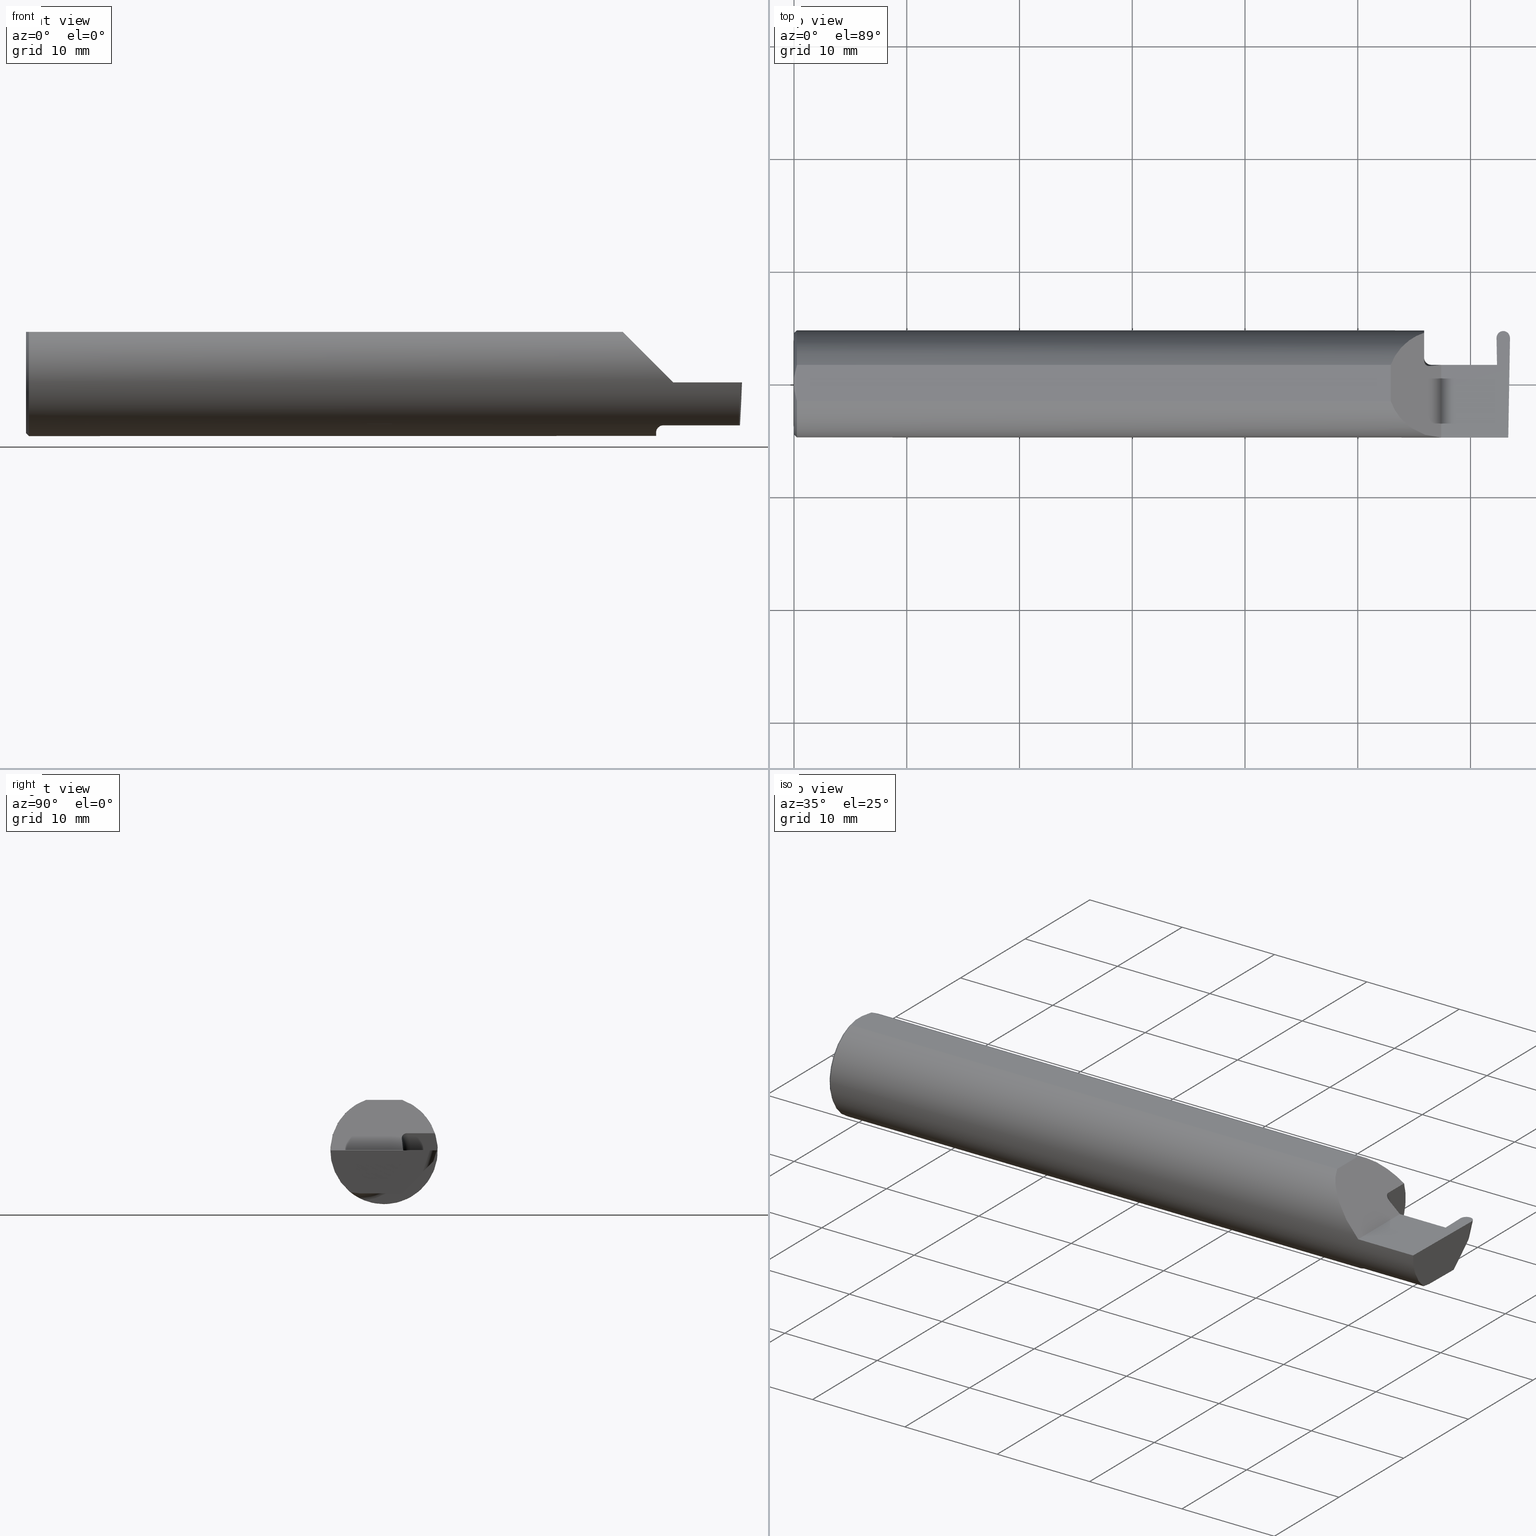
[diagram: canonical four-view strip — front | top / right | iso, engineering-drawing reading convention]
A machine part, canonical four-view strip (front | top / right | iso — engineering-drawing reading convention). The complete STEP part file that produces these views, byte-faithful:
ISO-10303-21;
HEADER;
FILE_DESCRIPTION (( 'STEP AP203' ),
    '1' );
FILE_NAME ('222116-GFR046-4.STEP',
    '2024-06-21T22:56:13',
    ( '' ),
    ( '' ),
    'SwSTEP 2.0',
    'SolidWorks 2022',
    '' );
FILE_SCHEMA (( 'CONFIG_CONTROL_DESIGN' ));
ENDSEC;

DATA;
#1 = CARTESIAN_POINT ( 'NONE',  ( 2.476759731742398163, 0.1846500000000000363, 0.000000000000000000 ) ) ;
#2 = ORIENTED_EDGE ( 'NONE', *, *, #686, .T. ) ;
#3 = ADVANCED_FACE ( 'NONE', ( #466 ), #675, .T. ) ;
#4 = PRODUCT_DEFINITION_SHAPE ( 'NONE', 'NONE',  #640 ) ;
#5 = CARTESIAN_POINT ( 'NONE',  ( 2.476480000000000903, 0.1790328857325889367, -0.01728770010724361636 ) ) ;
#6 = DIRECTION ( 'NONE',  ( -1.000000000000000000, -0.000000000000000000, -0.000000000000000000 ) ) ;
#7 = ORIENTED_EDGE ( 'NONE', *, *, #583, .T. ) ;
#8 = DIRECTION ( 'NONE',  ( 0.000000000000000000, 0.000000000000000000, -1.000000000000000000 ) ) ;
#9 = CARTESIAN_POINT ( 'NONE',  ( 2.476480000000000015, 0.1824111880958917686, -0.006890354540105977747 ) ) ;
#10 = ORIENTED_EDGE ( 'NONE', *, *, #359, .F. ) ;
#11 = DIMENSIONAL_EXPONENTS ( 1.000000000000000000, 0.000000000000000000, 0.000000000000000000, 0.000000000000000000, 0.000000000000000000, 0.000000000000000000, 0.000000000000000000 ) ;
#12 = DIRECTION ( 'NONE',  ( 0.000000000000000000, -0.7071067811865516806, 0.7071067811865434649 ) ) ;
#13 = ORIENTED_EDGE ( 'NONE', *, *, #50, .T. ) ;
#14 = VECTOR ( 'NONE', #211, 39.37007874015748143 ) ;
#15 = LOCAL_TIME ( 15, 56, 13.00000000000000000, #687 ) ;
#16 = CONICAL_SURFACE ( 'NONE', #299, 0.1773500000000005072, 0.7853981633974551624 ) ;
#17 = EDGE_CURVE ( 'NONE', #516, #431, #252, .T. ) ;
#18 = CARTESIAN_POINT ( 'NONE',  ( 2.463296071009176913, 0.1711396766916343237, -0.03916337485151524106 ) ) ;
#19 = ORIENTED_EDGE ( 'NONE', *, *, #560, .F. ) ;
#20 = ADVANCED_FACE ( 'NONE', ( #192 ), #520, .T. ) ;
#21 = DIRECTION ( 'NONE',  ( -0.01745240643727575397, -0.9998476951563912696, 0.000000000000000000 ) ) ;
#22 = ORIENTED_EDGE ( 'NONE', *, *, #471, .F. ) ;
#23 = LINE ( 'NONE', #63, #103 ) ;
#24 = EDGE_LOOP ( 'NONE', ( #654, #165, #664, #660 ) ) ;
#25 = VECTOR ( 'NONE', #32, 39.37007874015748143 ) ;
#26 = VECTOR ( 'NONE', #391, 39.37007874015748143 ) ;
#27 = VERTEX_POINT ( 'NONE', #37 ) ;
#28 = DATE_AND_TIME ( #201, #15 ) ;
#29 = ORIENTED_EDGE ( 'NONE', *, *, #310, .T. ) ;
#30 = CARTESIAN_POINT ( 'NONE',  ( 2.083649999999998670, 0.06325108694718283020, 0.1763499999999999235 ) ) ;
#31 = EDGE_CURVE ( 'NONE', #56, #67, #92, .T. ) ;
#32 = DIRECTION ( 'NONE',  ( 1.000000000000000000, 0.000000000000000000, 0.000000000000000000 ) ) ;
#33 = ORIENTED_EDGE ( 'NONE', *, *, #17, .T. ) ;
#34 = DIRECTION ( 'NONE',  ( 0.000000000000000000, -1.000000000000000000, 0.000000000000000000 ) ) ;
#35 = PERSON_AND_ORGANIZATION ( #317, #319 ) ;
#36 = EDGE_CURVE ( 'NONE', #427, #292, #683, .T. ) ;
#37 = CARTESIAN_POINT ( 'NONE',  ( 0.000000000000000000, -0.01880691362239451242, 0.1763499999999999235 ) ) ;
#38 = ADVANCED_FACE ( 'NONE', ( #626 ), #16, .T. ) ;
#39 = PLANE ( 'NONE',  #51 ) ;
#40 =( NAMED_UNIT ( * ) SI_UNIT ( $, .STERADIAN. ) SOLID_ANGLE_UNIT ( ) );
#41 = DIRECTION ( 'NONE',  ( 0.000000000000000000, 0.000000000000000000, -1.000000000000000000 ) ) ;
#42 = CARTESIAN_POINT ( 'NONE',  ( 2.452963582209922055, 0.1607195194005952010, 0.000000000000000000 ) ) ;
#43 = FACE_OUTER_BOUND ( 'NONE', #54, .T. ) ;
#44 = FACE_OUTER_BOUND ( 'NONE', #199, .T. ) ;
#45 = PERSON_AND_ORGANIZATION_ROLE ( 'classification_officer' ) ;
#46 = DIRECTION ( 'NONE',  ( -0.001239419280281356568, 0.9999992319196288060, -7.696171051551530993E-21 ) ) ;
#47 = LOCAL_TIME ( 15, 56, 13.00000000000000000, #377 ) ;
#48 = CARTESIAN_POINT ( 'NONE',  ( 2.225000000000000089, -0.1172600179964003314, -0.1461167706989305870 ) ) ;
#49 = ORIENTED_EDGE ( 'NONE', *, *, #290, .F. ) ;
#50 = EDGE_CURVE ( 'NONE', #390, #194, #566, .T. ) ;
#51 = AXIS2_PLACEMENT_3D ( 'NONE', #411, #358, #521 ) ;
#52 = CARTESIAN_POINT ( 'NONE',  ( 2.447180481656269446, 0.06628460753897337521, -0.01046347106162403597 ) ) ;
#53 = CARTESIAN_POINT ( 'NONE',  ( 2.213203859946834662, -0.1120371980050636346, -0.1501764597936560974 ) ) ;
#54 = EDGE_LOOP ( 'NONE', ( #342, #554, #399, #277, #352 ) ) ;
#55 = CARTESIAN_POINT ( 'NONE',  ( 2.222331837506049901, 0.06186927743178083361, 0.03766816249395005256 ) ) ;
#56 = VERTEX_POINT ( 'NONE', #678 ) ;
#57 = FACE_OUTER_BOUND ( 'NONE', #613, .T. ) ;
#58 = VECTOR ( 'NONE', #112, 39.37007874015748854 ) ;
#59 = CARTESIAN_POINT ( 'NONE',  ( 2.260000000000000231, -0.1873499999999999888, 2.939152317953647352E-17 ) ) ;
#60 = EDGE_LOOP ( 'NONE', ( #402, #238, #159, #303 ) ) ;
#61 = CIRCLE ( 'NONE', #122, 0.1750000000000001277 ) ;
#62 = DIRECTION ( 'NONE',  ( -0.03858184836401778312, -0.3087869137032491218, -0.9503484007996426675 ) ) ;
#63 = CARTESIAN_POINT ( 'NONE',  ( 2.454167696218687134, 0.2173767386537069080, 0.007073687110557875732 ) ) ;
#64 = ORIENTED_EDGE ( 'NONE', *, *, #370, .T. ) ;
#65 = UNCERTAINTY_MEASURE_WITH_UNIT (LENGTH_MEASURE( 1.000000000000000082E-05 ), #253, 'distance_accuracy_value', 'NONE');
#66 = CARTESIAN_POINT ( 'NONE',  ( -3.937007874019685528E-05, 0.1723030515431495657, -0.03799999999999999906 ) ) ;
#67 = VERTEX_POINT ( 'NONE', #409 ) ;
#68 = LINE ( 'NONE', #515, #334 ) ;
#69 = ORIENTED_EDGE ( 'NONE', *, *, #571, .F. ) ;
#70 = EDGE_CURVE ( 'NONE', #524, #292, #143, .T. ) ;
#71 = AXIS2_PLACEMENT_3D ( 'NONE', #505, #227, #605 ) ;
#72 =( GEOMETRIC_REPRESENTATION_CONTEXT ( 3 ) GLOBAL_UNCERTAINTY_ASSIGNED_CONTEXT ( ( #65 ) ) GLOBAL_UNIT_ASSIGNED_CONTEXT ( ( #253, #468, #40 ) ) REPRESENTATION_CONTEXT ( 'NONE', 'WORKASPACE' ) );
#73 = AXIS2_PLACEMENT_3D ( 'NONE', #157, #599, #104 ) ;
#74 = LINE ( 'NONE', #607, #161 ) ;
#75 = ORIENTED_EDGE ( 'NONE', *, *, #557, .T. ) ;
#76 = CARTESIAN_POINT ( 'NONE',  ( 2.472514239400390501, 0.2141508539741453221, 0.09079429260883779829 ) ) ;
#77 = VERTEX_POINT ( 'NONE', #361 ) ;
#78 = APPLICATION_PROTOCOL_DEFINITION ( 'international standard', 'config_control_design', 1994, #269 ) ;
#79 = EDGE_LOOP ( 'NONE', ( #107, #657, #561, #680 ) ) ;
#80 =( BOUNDED_CURVE ( )  B_SPLINE_CURVE ( 3, ( #403, #181, #503, #665 ),
 .UNSPECIFIED., .F., .F. ) 
 B_SPLINE_CURVE_WITH_KNOTS ( ( 4, 4 ),
 ( 0.2354267821558881923, 0.4634648172053364990 ),
 .UNSPECIFIED. ) 
 CURVE ( )  GEOMETRIC_REPRESENTATION_ITEM ( )  RATIONAL_B_SPLINE_CURVE ( ( 1.000000000000000000, 0.9956712472009928705, 0.9956712472009928705, 1.000000000000000000 ) ) 
 REPRESENTATION_ITEM ( '' )  );
#81 = CC_DESIGN_SECURITY_CLASSIFICATION ( #196, ( #263 ) ) ;
#82 = AXIS2_PLACEMENT_3D ( 'NONE', #647, #383, #498 ) ;
#83 = APPROVAL_DATE_TIME ( #189, #140 ) ;
#84 = DIRECTION ( 'NONE',  ( -0.03701368837992396327, -0.7066222423871548752, -0.7066222423871630909 ) ) ;
#85 = CARTESIAN_POINT ( 'NONE',  ( 2.447545874117295739, 0.06664999999999991764, 0.000000000000000000 ) ) ;
#86 =( BOUNDED_CURVE ( )  B_SPLINE_CURVE ( 3, ( #145, #138, #679, #148 ),
 .UNSPECIFIED., .F., .F. ) 
 B_SPLINE_CURVE_WITH_KNOTS ( ( 4, 4 ),
 ( 0.2128041086811283400, 1.107331509589577045 ),
 .UNSPECIFIED. ) 
 CURVE ( )  GEOMETRIC_REPRESENTATION_ITEM ( )  RATIONAL_B_SPLINE_CURVE ( ( 1.000000000000000000, 0.9344226172588800949, 0.9344226172588800949, 1.000000000000000000 ) ) 
 REPRESENTATION_ITEM ( '' )  );
#87 = COORDINATED_UNIVERSAL_TIME_OFFSET ( 8, 0, .BEHIND. ) ;
#88 = ORIENTED_EDGE ( 'NONE', *, *, #454, .F. ) ;
#89 = CARTESIAN_POINT ( 'NONE',  ( 2.103305020982357387, 0.1180511404724818164, 0.1566949790176410395 ) ) ;
#90 = ADVANCED_FACE ( 'NONE', ( #139 ), #321, .F. ) ;
#91 = EDGE_CURVE ( 'NONE', #427, #296, #629, .T. ) ;
#92 = LINE ( 'NONE', #309, #535 ) ;
#93 = MANIFOLD_SOLID_BREP ( 'Radii', #651 ) ;
#94 = CARTESIAN_POINT ( 'NONE',  ( 2.454605571778825102, 0.06664999999999998703, 0.000000000000000000 ) ) ;
#95 = DATE_TIME_ROLE ( 'creation_date' ) ;
#96 = ORIENTED_EDGE ( 'NONE', *, *, #525, .F. ) ;
#97 = LINE ( 'NONE', #42, #623 ) ;
#98 = ORIENTED_EDGE ( 'NONE', *, *, #186, .T. ) ;
#99 = CARTESIAN_POINT ( 'NONE',  ( 0.000000000000000000, 0.01880691362239451242, 0.1763499999999999235 ) ) ;
#100 = DIRECTION ( 'NONE',  ( -0.03858184836401847700, 0.3087869137032490663, 0.9503484007996426675 ) ) ;
#101 = CARTESIAN_POINT ( 'NONE',  ( 2.206491315391052144, 0.06519110945230538467, 0.05350868460894756679 ) ) ;
#102 = ORIENTED_EDGE ( 'NONE', *, *, #370, .F. ) ;
#103 = VECTOR ( 'NONE', #293, 39.37007874015748143 ) ;
#104 = DIRECTION ( 'NONE',  ( 0.000000000000000000, -1.000000000000000000, 0.000000000000000000 ) ) ;
#105 = LOCAL_TIME ( 15, 56, 13.00000000000000000, #353 ) ;
#106 = DIRECTION ( 'NONE',  ( -0.03549161113179515048, 0.03487750912278131388, 0.9987611851171729338 ) ) ;
#107 = ORIENTED_EDGE ( 'NONE', *, *, #611, .F. ) ;
#108 = VECTOR ( 'NONE', #578, 39.37007874015748143 ) ;
#109 = EDGE_CURVE ( 'NONE', #420, #281, #577, .T. ) ;
#110 = APPROVAL_ROLE ( '' ) ;
#111 = DIRECTION ( 'NONE',  ( 1.000000000000000000, 0.000000000000000000, 0.000000000000000000 ) ) ;
#112 = DIRECTION ( 'NONE',  ( -0.01745240643727575744, -0.9998476951563912696, 1.211557572730191881E-19 ) ) ;
#113 = ORIENTED_EDGE ( 'NONE', *, *, #232, .T. ) ;
#114 = PERSON_AND_ORGANIZATION_ROLE ( 'design_supplier' ) ;
#115 = CARTESIAN_POINT ( 'NONE',  ( 2.260000000000000231, 0.06664999999999984825, 2.939152317953647352E-17 ) ) ;
#116 = CARTESIAN_POINT ( 'NONE',  ( 2.083649999999998670, -0.2500000000000000555, 0.1763499999999999235 ) ) ;
#117 = ORIENTED_EDGE ( 'NONE', *, *, #36, .F. ) ;
#118 = PLANE ( 'NONE',  #82 ) ;
#119 = VECTOR ( 'NONE', #134, 39.37007874015748143 ) ;
#120 = DIRECTION ( 'NONE',  ( 1.000000000000000000, 4.724792446347703932E-16, 0.000000000000000000 ) ) ;
#121 = ORIENTED_EDGE ( 'NONE', *, *, #215, .F. ) ;
#122 = AXIS2_PLACEMENT_3D ( 'NONE', #658, #175, #604 ) ;
#123 = PLANE ( 'NONE',  #631 ) ;
#124 = ORIENTED_EDGE ( 'NONE', *, *, #144, .F. ) ;
#125 = B_SPLINE_CURVE_WITH_KNOTS ( 'NONE', 3,
 ( #48, #385, #266, #642, #53, #158, #653, #170, #389, #597, #331, #546 ),
 .UNSPECIFIED., .F., .F.,
 ( 4, 2, 2, 2, 2, 4 ),
 ( 1.967976973658592312E-07, 0.0002120314145722268929, 0.0004238660314470878913, 0.0008475352651967972030, 0.001271204498946506677, 0.001694873732696216152 ),
 .UNSPECIFIED. ) ;
#126 = ADVANCED_FACE ( 'NONE', ( #210 ), #589, .T. ) ;
#127 = DIRECTION ( 'NONE',  ( -0.03858184836401847007, 0.3087869137032490663, 0.9503484007996424454 ) ) ;
#128 = VERTEX_POINT ( 'NONE', #207 ) ;
#129 = CARTESIAN_POINT ( 'NONE',  ( 2.454605571778825102, 0.06664999999999998703, 0.000000000000000000 ) ) ;
#130 = EDGE_LOOP ( 'NONE', ( #188, #113, #174, #463 ) ) ;
#131 = VECTOR ( 'NONE', #439, 39.37007874015748143 ) ;
#132 = DIRECTION ( 'NONE',  ( 0.000000000000000000, 0.000000000000000000, -1.000000000000000000 ) ) ;
#133 = ORIENTED_EDGE ( 'NONE', *, *, #593, .T. ) ;
#134 = DIRECTION ( 'NONE',  ( 0.03858184836401778312, 0.3087869137032490663, 0.9503484007996426675 ) ) ;
#135 = VERTEX_POINT ( 'NONE', #52 ) ;
#136 = DIRECTION ( 'NONE',  ( 1.000000000000000000, 0.000000000000000000, 0.000000000000000000 ) ) ;
#137 = CARTESIAN_POINT ( 'NONE',  ( 2.473072870090768038, 0.1327926526855970346, -0.08355290663987213762 ) ) ;
#138 = CARTESIAN_POINT ( 'NONE',  ( 2.490517704308097713, -0.1623470442677540093, -0.1099340280425339517 ) ) ;
#139 = FACE_OUTER_BOUND ( 'NONE', #60, .T. ) ;
#140 = APPROVAL ( #308, 'UNSPECIFIED' ) ;
#141 = DIRECTION ( 'NONE',  ( 0.03490480639812536257, 0.000000000000000000, 0.9993906415863165194 ) ) ;
#142 = DIRECTION ( 'NONE',  ( -0.7071067811865441310, 0.000000000000000000, -0.7071067811865510144 ) ) ;
#143 = LINE ( 'NONE', #481, #511 ) ;
#144 = EDGE_CURVE ( 'NONE', #287, #27, #256, .T. ) ;
#145 = CARTESIAN_POINT ( 'NONE',  ( 2.490040979592266890, -0.1172600179964004424, -0.1461167706989304482 ) ) ;
#146 = CARTESIAN_POINT ( 'NONE',  ( 2.260000000000000231, -0.2500000000000000555, 2.939152317953647352E-17 ) ) ;
#147 = DIRECTION ( 'NONE',  ( 0.000000000000000000, 0.000000000000000000, -1.000000000000000000 ) ) ;
#148 = CARTESIAN_POINT ( 'NONE',  ( 2.493920841729410753, -0.1873499999999999888, 0.000000000000000000 ) ) ;
#149 = VECTOR ( 'NONE', #127, 39.37007874015748854 ) ;
#150 = CARTESIAN_POINT ( 'NONE',  ( 2.876828993045917215, 0.1873499999999998500, 0.1763499999999999235 ) ) ;
#151 = AXIS2_PLACEMENT_3D ( 'NONE', #470, #526, #147 ) ;
#152 = CARTESIAN_POINT ( 'NONE',  ( 2.476200268257601866, 0.1846500000000000363, 0.000000000000000000 ) ) ;
#153 = PERSON_AND_ORGANIZATION ( #317, #319 ) ;
#154 = CARTESIAN_POINT ( 'NONE',  ( 2.200000000000000178, 0.08104282222773610822, 0.05999999999999956757 ) ) ;
#155 = CARTESIAN_POINT ( 'NONE',  ( 0.000000000000000000, 0.01880691362239451242, 0.1763499999999999235 ) ) ;
#156 = ORIENTED_EDGE ( 'NONE', *, *, #91, .F. ) ;
#157 = CARTESIAN_POINT ( 'NONE',  ( 2.225000000000000089, -0.08335000000000010456, 0.000000000000000000 ) ) ;
#158 = CARTESIAN_POINT ( 'NONE',  ( 2.208439486659307338, -0.1064616213911155906, -0.1542305641651501580 ) ) ;
#159 = ORIENTED_EDGE ( 'NONE', *, *, #469, .T. ) ;
#160 = ADVANCED_FACE ( 'NONE', ( #43 ), #590, .T. ) ;
#161 = VECTOR ( 'NONE', #21, 39.37007874015748854 ) ;
#162 = APPROVAL_STATUS ( 'not_yet_approved' ) ;
#163 = CARTESIAN_POINT ( 'NONE',  ( 0.000000000000000000, -0.01880691362239451242, 0.1763499999999999235 ) ) ;
#164 = DIRECTION ( 'NONE',  ( 1.000000000000000000, 4.724792446347703932E-16, 0.000000000000000000 ) ) ;
#165 = ORIENTED_EDGE ( 'NONE', *, *, #611, .T. ) ;
#166 = AXIS2_PLACEMENT_3D ( 'NONE', #579, #279, #8 ) ;
#167 = EDGE_CURVE ( 'NONE', #301, #559, #698, .T. ) ;
#168 = APPROVAL_DATE_TIME ( #204, #372 ) ;
#169 = LINE ( 'NONE', #537, #384 ) ;
#170 = CARTESIAN_POINT ( 'NONE',  ( 2.202960551809340917, -0.09317341542745721794, -0.1626248379125198873 ) ) ;
#171 = ORIENTED_EDGE ( 'NONE', *, *, #314, .T. ) ;
#172 = CARTESIAN_POINT ( 'NONE',  ( 2.260000000000000231, -0.2500000000000000555, 2.939152317953647352E-17 ) ) ;
#173 = CARTESIAN_POINT ( 'NONE',  ( 2.219643712645606559, 0.06157137645965355538, 0.04035628735439349829 ) ) ;
#174 = ORIENTED_EDGE ( 'NONE', *, *, #387, .T. ) ;
#175 = DIRECTION ( 'NONE',  ( -1.000000000000000000, -4.724792446347703932E-16, -0.000000000000000000 ) ) ;
#176 = CARTESIAN_POINT ( 'NONE',  ( 0.009999999999999346217, 0.000000000000000000, 0.000000000000000000 ) ) ;
#177 = ORIENTED_EDGE ( 'NONE', *, *, #471, .T. ) ;
#178 = EDGE_CURVE ( 'NONE', #489, #390, #278, .T. ) ;
#179 = DIRECTION ( 'NONE',  ( 0.000000000000000000, -0.7071067811865434649, -0.7071067811865516806 ) ) ;
#180 = ORIENTED_EDGE ( 'NONE', *, *, #197, .T. ) ;
#181 = CARTESIAN_POINT ( 'NONE',  ( 2.490145048687840923, -0.1061291577212404302, -0.1486999626928448004 ) ) ;
#182 = ORIENTED_EDGE ( 'NONE', *, *, #507, .T. ) ;
#183 = ADVANCED_FACE ( 'NONE', ( #261 ), #118, .F. ) ;
#184 = PLANE ( 'NONE',  #681 ) ;
#185 = ORIENTED_EDGE ( 'NONE', *, *, #70, .T. ) ;
#186 = EDGE_CURVE ( 'NONE', #287, #274, #696, .T. ) ;
#187 = DIRECTION ( 'NONE',  ( 1.000000000000000000, 0.000000000000000000, 0.000000000000000000 ) ) ;
#188 = ORIENTED_EDGE ( 'NONE', *, *, #441, .F. ) ;
#189 = DATE_AND_TIME ( #691, #661 ) ;
#190 = ORIENTED_EDGE ( 'NONE', *, *, #593, .F. ) ;
#191 = CARTESIAN_POINT ( 'NONE',  ( 2.476759731742398163, 0.1846500000000000363, 0.000000000000000000 ) ) ;
#192 = FACE_OUTER_BOUND ( 'NONE', #396, .T. ) ;
#193 = DIRECTION ( 'NONE',  ( -0.9992386149554827179, 0.01744177490282240728, 0.03489949670250104552 ) ) ;
#194 = VERTEX_POINT ( 'NONE', #429 ) ;
#195 = VECTOR ( 'NONE', #225, 39.37007874015748143 ) ;
#196 = SECURITY_CLASSIFICATION ( '', '', #315 ) ;
#197 = EDGE_CURVE ( 'NONE', #77, #301, #641, .T. ) ;
#198 = VECTOR ( 'NONE', #541, 39.37007874015748143 ) ;
#199 = EDGE_LOOP ( 'NONE', ( #435, #156, #69, #592 ) ) ;
#200 = CARTESIAN_POINT ( 'NONE',  ( 2.236476718690367793, 0.06526343940705725544, 0.02352328130963212555 ) ) ;
#201 = CALENDAR_DATE ( 2024, 21, 6 ) ;
#202 = DIRECTION ( 'NONE',  ( 4.724792446347703932E-16, -1.000000000000000000, 0.000000000000000000 ) ) ;
#203 = FACE_OUTER_BOUND ( 'NONE', #616, .T. ) ;
#204 = DATE_AND_TIME ( #646, #47 ) ;
#205 = CARTESIAN_POINT ( 'NONE',  ( 2.454605571778825102, 0.06664999999999998703, 0.000000000000000000 ) ) ;
#206 = CARTESIAN_POINT ( 'NONE',  ( 2.493920841729410753, -0.1873499999999999888, 0.000000000000000000 ) ) ;
#207 = CARTESIAN_POINT ( 'NONE',  ( 2.225000000000000089, -0.1172600179964003314, -0.1461167706989305870 ) ) ;
#208 = DIRECTION ( 'NONE',  ( 0.03547001781079399396, 0.000000000000000000, -0.9993707409347654114 ) ) ;
#209 = VERTEX_POINT ( 'NONE', #388 ) ;
#210 = FACE_OUTER_BOUND ( 'NONE', #79, .T. ) ;
#211 = DIRECTION ( 'NONE',  ( 0.000000000000000000, 1.000000000000000000, 0.000000000000000000 ) ) ;
#212 = EDGE_LOOP ( 'NONE', ( #510, #75, #572 ) ) ;
#213 = PERSON_AND_ORGANIZATION ( #317, #319 ) ;
#214 = CARTESIAN_POINT ( 'NONE',  ( 2.472514239400390501, 0.1918010258412092273, 0.09805619197664909581 ) ) ;
#215 = EDGE_CURVE ( 'NONE', #585, #489, #635, .T. ) ;
#216 = CARTESIAN_POINT ( 'NONE',  ( 2.476480000000000459, 0.1722500154617881696, -0.03805303608136139520 ) ) ;
#217 = EDGE_LOOP ( 'NONE', ( #406, #700, #64, #29, #506, #223, #456, #440, #294 ) ) ;
#218 = CARTESIAN_POINT ( 'NONE',  ( 2.476480000000000903, 0.1756450098733835230, -0.02767777025991331394 ) ) ;
#219 = CARTESIAN_POINT ( 'NONE',  ( 2.225000000000000089, 0.06250952145814826777, 0.03500000000000007272 ) ) ;
#220 = ORIENTED_EDGE ( 'NONE', *, *, #697, .T. ) ;
#221 = DIRECTION ( 'NONE',  ( 0.000000000000000000, 0.000000000000000000, -1.000000000000000000 ) ) ;
#222 = CARTESIAN_POINT ( 'NONE',  ( 2.454605571778825102, 0.06664999999999998703, 0.000000000000000000 ) ) ;
#223 = ORIENTED_EDGE ( 'NONE', *, *, #232, .F. ) ;
#224 = CARTESIAN_POINT ( 'NONE',  ( 2.460115337567889249, -0.08334999999999999354, -0.1500000000000000500 ) ) ;
#225 = DIRECTION ( 'NONE',  ( 0.7071067811865426878, 0.000000000000000000, -0.7071067811865523467 ) ) ;
#226 = ORIENTED_EDGE ( 'NONE', *, *, #31, .T. ) ;
#227 = DIRECTION ( 'NONE',  ( -1.000000000000000000, -0.000000000000000000, -0.000000000000000000 ) ) ;
#228 = ORIENTED_EDGE ( 'NONE', *, *, #701, .F. ) ;
#229 =( BOUNDED_CURVE ( )  B_SPLINE_CURVE ( 3, ( #152, #250, #689, #311 ),
 .UNSPECIFIED., .F., .F. ) 
 B_SPLINE_CURVE_WITH_KNOTS ( ( 4, 4 ),
 ( 6.164995997523367244, 7.741595932998476925 ),
 .UNSPECIFIED. ) 
 CURVE ( )  GEOMETRIC_REPRESENTATION_ITEM ( )  RATIONAL_B_SPLINE_CURVE ( ( 1.000000000000000000, 0.8033679476376971440, 0.8033679476376971440, 1.000000000000000000 ) ) 
 REPRESENTATION_ITEM ( '' )  );
#230 = AXIS2_PLACEMENT_3D ( 'NONE', #479, #685, #34 ) ;
#231 = ORIENTED_EDGE ( 'NONE', *, *, #167, .T. ) ;
#232 = EDGE_CURVE ( 'NONE', #296, #135, #169, .T. ) ;
#233 = DESIGN_CONTEXT ( 'detailed design', #269, 'design' ) ;
#234 =( BOUNDED_CURVE ( )  B_SPLINE_CURVE ( 3, ( #59, #496, #591, #313 ),
 .UNSPECIFIED., .F., .T. ) 
 B_SPLINE_CURVE_WITH_KNOTS ( ( 4, 4 ),
 ( 4.712388980384688786, 5.938809479923471635 ),
 .UNSPECIFIED. ) 
 CURVE ( )  GEOMETRIC_REPRESENTATION_ITEM ( )  RATIONAL_B_SPLINE_CURVE ( ( 1.000000000000000000, 0.8785364999009659392, 0.8785364999009659392, 1.000000000000000000 ) ) 
 REPRESENTATION_ITEM ( '' )  );
#235 = CARTESIAN_POINT ( 'NONE',  ( 2.476200268257601866, 0.1846500000000000363, 0.000000000000000000 ) ) ;
#236 = VERTEX_POINT ( 'NONE', #115 ) ;
#237 = CARTESIAN_POINT ( 'NONE',  ( 2.459937291069381082, 0.06030305154315079852, -0.1500000000000000500 ) ) ;
#238 = ORIENTED_EDGE ( 'NONE', *, *, #304, .F. ) ;
#239 = VECTOR ( 'NONE', #84, 39.37007874015748854 ) ;
#240 = DIRECTION ( 'NONE',  ( 1.000000000000000000, -0.000000000000000000, -0.000000000000000000 ) ) ;
#241 = VERTEX_POINT ( 'NONE', #636 ) ;
#242 = CARTESIAN_POINT ( 'NONE',  ( 2.459895087900160870, 0.06145200698433272296, -0.1488510445587935827 ) ) ;
#243 = B_SPLINE_CURVE_WITH_KNOTS ( 'NONE', 3,
 ( #568, #366, #307, #85 ),
 .UNSPECIFIED., .F., .F.,
 ( 4, 4 ),
 ( 0.000000000000000000, 1.000000000000000000 ),
 .UNSPECIFIED. ) ;
#244 = DIRECTION ( 'NONE',  ( -1.000000000000000000, -0.000000000000000000, -0.000000000000000000 ) ) ;
#245 = CARTESIAN_POINT ( 'NONE',  ( 2.454977397848501219, 0.06628460753894979685, -0.01046347106162132459 ) ) ;
#246 = ORIENTED_EDGE ( 'NONE', *, *, #454, .T. ) ;
#247 = ADVANCED_FACE ( 'NONE', ( #57 ), #532, .F. ) ;
#248 = LINE ( 'NONE', #258, #119 ) ;
#249 = DIRECTION ( 'NONE',  ( 0.000000000000000000, 0.000000000000000000, 1.000000000000000000 ) ) ;
#250 = CARTESIAN_POINT ( 'NONE',  ( 2.462360552522071533, 0.1846499999999998698, 1.730980851401795297E-18 ) ) ;
#251 = AXIS2_PLACEMENT_3D ( 'NONE', #355, #164, #271 ) ;
#252 = CIRCLE ( 'NONE', #151, 0.1773500000000005072 ) ;
#253 =( CONVERSION_BASED_UNIT ( 'INCH', #360 ) LENGTH_UNIT ( ) NAMED_UNIT ( #11 ) );
#254 = EDGE_LOOP ( 'NONE', ( #649, #33, #422 ) ) ;
#255 = CARTESIAN_POINT ( 'NONE',  ( 2.460115337567889249, -0.08334999999999999354, -0.1500000000000000500 ) ) ;
#256 = B_SPLINE_CURVE_WITH_KNOTS ( 'NONE', 3,
 ( #425, #652, #316, #163 ),
 .UNSPECIFIED., .F., .F.,
 ( 4, 4 ),
 ( 0.009771445421851449736, 0.01092787937989102981 ),
 .UNSPECIFIED. ) ;
#257 = EDGE_CURVE ( 'NONE', #241, #236, #694, .T. ) ;
#258 = CARTESIAN_POINT ( 'NONE',  ( 2.499991330919623778, 0.1598853660763216999, 0.0002712393593816690598 ) ) ;
#259 = CARTESIAN_POINT ( 'NONE',  ( 2.495447877133665671, 0.1069448008515546666, -0.1033582506915956406 ) ) ;
#260 = CYLINDRICAL_SURFACE ( 'NONE', #230, 0.1500000000000000777 ) ;
#261 = FACE_OUTER_BOUND ( 'NONE', #462, .T. ) ;
#262 = DIRECTION ( 'NONE',  ( 0.9993699743034455407, 0.001238639365660558185, 0.03546999060124557401 ) ) ;
#263 = PRODUCT_DEFINITION_FORMATION_WITH_SPECIFIED_SOURCE ( 'ANY', '', #501, .NOT_KNOWN. ) ;
#264 = CARTESIAN_POINT ( 'NONE',  ( 2.496943030093102145, 0.1354885203010863515, -0.07481453124206363658 ) ) ;
#265 = VECTOR ( 'NONE', #473, 39.37007874015748143 ) ;
#266 = CARTESIAN_POINT ( 'NONE',  ( 2.219511795768555285, -0.1163687266324232028, -0.1468371510166791849 ) ) ;
#267 = EDGE_LOOP ( 'NONE', ( #500, #493, #349, #504, #328, #98, #272, #458, #672, #340, #96 ) ) ;
#268 = CC_DESIGN_PERSON_AND_ORGANIZATION_ASSIGNMENT ( #364, #574, ( #640 ) ) ;
#269 = APPLICATION_CONTEXT ( 'configuration controlled 3d designs of mechanical parts and assemblies' ) ;
#270 = CARTESIAN_POINT ( 'NONE',  ( 0.009999999999999346217, 0.000000000000000000, 0.000000000000000000 ) ) ;
#271 = DIRECTION ( 'NONE',  ( 0.000000000000000000, 1.000000000000000000, 0.000000000000000000 ) ) ;
#272 = ORIENTED_EDGE ( 'NONE', *, *, #587, .T. ) ;
#273 = EDGE_CURVE ( 'NONE', #452, #128, #453, .T. ) ;
#274 = VERTEX_POINT ( 'NONE', #530 ) ;
#275 = CARTESIAN_POINT ( 'NONE',  ( 2.733184360054362827, -0.08334999999999899434, -0.1500000000000000500 ) ) ;
#276 = FACE_OUTER_BOUND ( 'NONE', #705, .T. ) ;
#277 = ORIENTED_EDGE ( 'NONE', *, *, #557, .F. ) ;
#278 =( BOUNDED_CURVE ( )  B_SPLINE_CURVE ( 3, ( #494, #487, #320, #264 ),
 .UNSPECIFIED., .F., .F. ) 
 B_SPLINE_CURVE_WITH_KNOTS ( ( 4, 4 ),
 ( 3.175776140005400983, 4.698536687208076046 ),
 .UNSPECIFIED. ) 
 CURVE ( )  GEOMETRIC_REPRESENTATION_ITEM ( )  RATIONAL_B_SPLINE_CURVE ( ( 1.000000000000000000, 0.8159229469975439741, 0.8159229469975439741, 1.000000000000000000 ) ) 
 REPRESENTATION_ITEM ( '' )  );
#279 = DIRECTION ( 'NONE',  ( 1.000000000000000000, 0.000000000000000000, 0.000000000000000000 ) ) ;
#280 = DIRECTION ( 'NONE',  ( 0.03490480639812536257, 0.000000000000000000, -0.9993906415863165194 ) ) ;
#281 = VERTEX_POINT ( 'NONE', #154 ) ;
#282 = FACE_OUTER_BOUND ( 'NONE', #130, .T. ) ;
#283 = ORIENTED_EDGE ( 'NONE', *, *, #441, .T. ) ;
#284 = B_SPLINE_CURVE_WITH_KNOTS ( 'NONE', 3,
 ( #99, #499, #531, #434 ),
 .UNSPECIFIED., .F., .F.,
 ( 4, 4 ),
 ( 0.01188664626022267051, 0.01304646959483758001 ),
 .UNSPECIFIED. ) ;
#285 = ADVANCED_FACE ( 'NONE', ( #373 ), #582, .F. ) ;
#286 = DIRECTION ( 'NONE',  ( -1.000000000000000000, -0.000000000000000000, -0.000000000000000000 ) ) ;
#287 = VERTEX_POINT ( 'NONE', #335 ) ;
#288 = APPROVAL_PERSON_ORGANIZATION ( #432, #372, #110 ) ;
#289 = AXIS2_PLACEMENT_3D ( 'NONE', #214, #100, #433 ) ;
#290 = EDGE_CURVE ( 'NONE', #404, #585, #550, .T. ) ;
#291 = CARTESIAN_POINT ( 'NONE',  ( 2.452963582209922055, 0.1607195194005952010, 0.000000000000000000 ) ) ;
#292 = VERTEX_POINT ( 'NONE', #394 ) ;
#293 = DIRECTION ( 'NONE',  ( -0.02596452850600339951, 0.7068683906002054540, 0.7068683906002136697 ) ) ;
#294 = ORIENTED_EDGE ( 'NONE', *, *, #583, .F. ) ;
#295 = LINE ( 'NONE', #628, #602 ) ;
#296 = VERTEX_POINT ( 'NONE', #502 ) ;
#297 = CC_DESIGN_PERSON_AND_ORGANIZATION_ASSIGNMENT ( #153, #114, ( #263 ) ) ;
#298 = CARTESIAN_POINT ( 'NONE',  ( 2.200000000000000178, 0.1774824568795465018, 0.05999999999999961614 ) ) ;
#299 = AXIS2_PLACEMENT_3D ( 'NONE', #528, #570, #41 ) ;
#300 = APPROVAL_ROLE ( '' ) ;
#301 = VERTEX_POINT ( 'NONE', #224 ) ;
#302 = LINE ( 'NONE', #519, #603 ) ;
#303 = ORIENTED_EDGE ( 'NONE', *, *, #273, .T. ) ;
#304 = EDGE_CURVE ( 'NONE', #281, #643, #61, .T. ) ;
#305 = CARTESIAN_POINT ( 'NONE',  ( 0.000000000000000000, 0.000000000000000000, 0.000000000000000000 ) ) ;
#306 = ORIENTED_EDGE ( 'NONE', *, *, #418, .F. ) ;
#307 = CARTESIAN_POINT ( 'NONE',  ( 2.447424076630286827, 0.06652820251299107479, -0.003487823687208008085 ) ) ;
#308 = APPROVAL_STATUS ( 'not_yet_approved' ) ;
#309 = CARTESIAN_POINT ( 'NONE',  ( 0.000000000000000000, 0.06325108694718235836, 0.1763499999999999235 ) ) ;
#310 = EDGE_CURVE ( 'NONE', #236, #448, #302, .T. ) ;
#311 = CARTESIAN_POINT ( 'NONE',  ( 2.452979680742863433, 0.1597972350660649687, 0.000000000000000000 ) ) ;
#312 = DIRECTION ( 'NONE',  ( -0.03701368837992555227, 0.7066222423871548752, 0.7066222423871630909 ) ) ;
#313 = CARTESIAN_POINT ( 'NONE',  ( 2.083649999999998670, -0.06325108694718283020, 0.1763499999999999235 ) ) ;
#314 = EDGE_CURVE ( 'NONE', #601, #524, #229, .T. ) ;
#315 = SECURITY_CLASSIFICATION_LEVEL ( 'unclassified' ) ;
#316 = CARTESIAN_POINT ( 'NONE',  ( 0.001595548104417217512, -0.03385300050298979679, 0.1763499999999999235 ) ) ;
#317 = PERSON ( 'UNSPECIFIED', 'UNSPECIFIED', 'UNSPECIFIED', ('UNSPECIFIED'), ('UNSPECIFIED'), ('UNSPECIFIED') ) ;
#318 = VERTEX_POINT ( 'NONE', #206 ) ;
#319 = ORGANIZATION ( 'UNSPECIFIED', 'UNSPECIFIED', '' ) ;
#320 = CARTESIAN_POINT ( 'NONE',  ( 2.498023799314528226, 0.1561213079040835727, -0.05418174363906622104 ) ) ;
#321 = TOROIDAL_SURFACE ( 'NONE', #634, 0.1750000000000001277, 0.02499999999999993894 ) ;
#322 = CARTESIAN_POINT ( 'NONE',  ( 2.499980319257137484, 0.1597972350660649965, 0.000000000000000000 ) ) ;
#323 = VERTEX_POINT ( 'NONE', #676 ) ;
#324 = EDGE_CURVE ( 'NONE', #56, #420, #350, .T. ) ;
#325 = CALENDAR_DATE ( 2024, 21, 6 ) ;
#326 = CARTESIAN_POINT ( 'NONE',  ( 2.733184360054362827, -0.08334999999999899434, -0.1500000000000000500 ) ) ;
#327 = CARTESIAN_POINT ( 'NONE',  ( -3.937007874019685528E-05, 0.06030305154315079158, -0.1500000000000000500 ) ) ;
#328 = ORIENTED_EDGE ( 'NONE', *, *, #686, .F. ) ;
#329 = PRODUCT_RELATED_PRODUCT_CATEGORY ( 'detail', '', ( #501 ) ) ;
#330 = CARTESIAN_POINT ( 'NONE',  ( 2.200000000000000178, -0.2500000000000001110, 0.05999999999999940797 ) ) ;
#331 = CARTESIAN_POINT ( 'NONE',  ( 2.199999999999999289, -0.07368234487347168071, -0.1723418180300748392 ) ) ;
#332 = EDGE_LOOP ( 'NONE', ( #497, #407, #639 ) ) ;
#333 =( BOUNDED_CURVE ( )  B_SPLINE_CURVE ( 3, ( #255, #529, #421, #245 ),
 .UNSPECIFIED., .F., .F. ) 
 B_SPLINE_CURVE_WITH_KNOTS ( ( 4, 4 ),
 ( 3.176499238629666433, 4.677482395344761734 ),
 .UNSPECIFIED. ) 
 CURVE ( )  GEOMETRIC_REPRESENTATION_ITEM ( )  RATIONAL_B_SPLINE_CURVE ( ( 1.000000000000000000, 0.8209024677461199682, 0.8209024677461199682, 1.000000000000000000 ) ) 
 REPRESENTATION_ITEM ( '' )  );
#334 = VECTOR ( 'NONE', #286, 39.37007874015748143 ) ;
#335 = CARTESIAN_POINT ( 'NONE',  ( 0.009999999999999346217, -0.06325108694718235836, 0.1763499999999999235 ) ) ;
#336 = DIRECTION ( 'NONE',  ( -4.724792446347703932E-16, 1.000000000000000000, 0.000000000000000000 ) ) ;
#337 = EDGE_LOOP ( 'NONE', ( #598, #669, #547, #13, #22, #543 ) ) ;
#338 = VECTOR ( 'NONE', #369, 39.37007874015748143 ) ;
#339 = DIRECTION ( 'NONE',  ( 0.000000000000000000, -0.03489949670250104552, -0.9993908270190957621 ) ) ;
#340 = ORIENTED_EDGE ( 'NONE', *, *, #436, .F. ) ;
#341 = LINE ( 'NONE', #551, #472 ) ;
#342 = ORIENTED_EDGE ( 'NONE', *, *, #567, .F. ) ;
#343 = CC_DESIGN_PERSON_AND_ORGANIZATION_ASSIGNMENT ( #595, #428, ( #263 ) ) ;
#344 = ADVANCED_FACE ( 'NONE', ( #203 ), #619, .F. ) ;
#345 = CARTESIAN_POINT ( 'NONE',  ( 2.476480000000000459, 0.1722500154617881696, -0.03805303608136139520 ) ) ;
#346 = ORIENTED_EDGE ( 'NONE', *, *, #507, .F. ) ;
#347 = EDGE_CURVE ( 'NONE', #301, #296, #333, .T. ) ;
#348 = FACE_OUTER_BOUND ( 'NONE', #332, .T. ) ;
#349 = ORIENTED_EDGE ( 'NONE', *, *, #560, .T. ) ;
#350 =( BOUNDED_CURVE ( )  B_SPLINE_CURVE ( 3, ( #30, #89, #408, #624 ),
 .UNSPECIFIED., .F., .F. ) 
 B_SPLINE_CURVE_WITH_KNOTS ( ( 4, 4 ),
 ( 0.3443758272561143752, 1.244796402594305018 ),
 .UNSPECIFIED. ) 
 CURVE ( )  GEOMETRIC_REPRESENTATION_ITEM ( )  RATIONAL_B_SPLINE_CURVE ( ( 1.000000000000000000, 0.9335704097038357574, 0.9335704097038357574, 1.000000000000000000 ) ) 
 REPRESENTATION_ITEM ( '' )  );
#351 = PERSON_AND_ORGANIZATION ( #317, #319 ) ;
#352 = ORIENTED_EDGE ( 'NONE', *, *, #215, .T. ) ;
#353 = COORDINATED_UNIVERSAL_TIME_OFFSET ( 8, 0, .BEHIND. ) ;
#354 = DIRECTION ( 'NONE',  ( -0.03858184836401778312, -0.3087869137032490108, -0.9503484007996425564 ) ) ;
#355 = CARTESIAN_POINT ( 'NONE',  ( 2.200000000000000178, 0.000000000000000000, 0.000000000000000000 ) ) ;
#356 = CC_DESIGN_APPROVAL ( #140, ( #263 ) ) ;
#357 = PERSON_AND_ORGANIZATION_ROLE ( 'design_owner' ) ;
#358 = DIRECTION ( 'NONE',  ( 0.000000000000000000, -0.9510565162951533091, 0.3090169943749482284 ) ) ;
#359 = EDGE_CURVE ( 'NONE', #448, #581, #423, .T. ) ;
#360 = LENGTH_MEASURE_WITH_UNIT ( LENGTH_MEASURE( 0.02539999999999999897 ), #477 );
#361 = CARTESIAN_POINT ( 'NONE',  ( 2.490497255146305822, -0.08334999999999899434, -0.1500000000000000500 ) ) ;
#362 = CARTESIAN_POINT ( 'NONE',  ( 2.499996417790078862, 0.1607195194005952565, 0.000000000000000000 ) ) ;
#363 = ADVANCED_FACE ( 'NONE', ( #417 ), #260, .T. ) ;
#364 = PERSON_AND_ORGANIZATION ( #317, #319 ) ;
#365 = DIRECTION ( 'NONE',  ( 0.000000000000000000, 0.9510565162951534202, -0.3090169943749480619 ) ) ;
#366 = CARTESIAN_POINT ( 'NONE',  ( 2.447302279143278358, 0.06640640502598223194, -0.006975647374416017038 ) ) ;
#367 = CIRCLE ( 'NONE', #251, 0.1873499999999999888 ) ;
#368 = AXIS2_PLACEMENT_3D ( 'NONE', #275, #655, #442 ) ;
#369 = DIRECTION ( 'NONE',  ( -0.03549161113179515048, 0.03487750912278131388, 0.9987611851171729338 ) ) ;
#370 = EDGE_CURVE ( 'NONE', #452, #236, #588, .T. ) ;
#371 = CARTESIAN_POINT ( 'NONE',  ( 0.000000000000000000, 0.1873499999999998500, 0.1763499999999999235 ) ) ;
#372 = APPROVAL ( #162, 'UNSPECIFIED' ) ;
#373 = FACE_OUTER_BOUND ( 'NONE', #254, .T. ) ;
#374 = LINE ( 'NONE', #392, #58 ) ;
#375 = EDGE_LOOP ( 'NONE', ( #102, #534, #393, #606, #346, #539, #552 ) ) ;
#376 = EDGE_CURVE ( 'NONE', #323, #318, #86, .T. ) ;
#377 = COORDINATED_UNIVERSAL_TIME_OFFSET ( 8, 0, .BEHIND. ) ;
#378 = CARTESIAN_POINT ( 'NONE',  ( 2.460115757045640450, -0.08368844675136180578, -0.1500000000000000500 ) ) ;
#379 = DIRECTION ( 'NONE',  ( 0.000000000000000000, 0.000000000000000000, -1.000000000000000000 ) ) ;
#380 = ORIENTED_EDGE ( 'NONE', *, *, #376, .F. ) ;
#381 = CIRCLE ( 'NONE', #437, 0.1773500000000005072 ) ;
#382 = SHAPE_DEFINITION_REPRESENTATION ( #4, #673 ) ;
#383 = DIRECTION ( 'NONE',  ( -1.224646799147353947E-16, 0.000000000000000000, -1.000000000000000000 ) ) ;
#384 = VECTOR ( 'NONE', #596, 39.37007874015748143 ) ;
#385 = CARTESIAN_POINT ( 'NONE',  ( 2.222174967710399685, -0.1172600179964003314, -0.1461167706989306703 ) ) ;
#386 = ORIENTED_EDGE ( 'NONE', *, *, #178, .F. ) ;
#387 = EDGE_CURVE ( 'NONE', #135, #448, #243, .T. ) ;
#388 = CARTESIAN_POINT ( 'NONE',  ( 2.499980319257137484, 0.1597972350660649965, 0.000000000000000000 ) ) ;
#389 = CARTESIAN_POINT ( 'NONE',  ( 2.201843912362378308, -0.08846956905169064966, -0.1652353808078973751 ) ) ;
#390 = VERTEX_POINT ( 'NONE', #576 ) ;
#391 = DIRECTION ( 'NONE',  ( -0.000000000000000000, 1.000000000000000000, -0.000000000000000000 ) ) ;
#392 = CARTESIAN_POINT ( 'NONE',  ( 2.490571174359867967, -0.07911517109126174618, -0.1500000000000000500 ) ) ;
#393 = ORIENTED_EDGE ( 'NONE', *, *, #109, .F. ) ;
#394 = CARTESIAN_POINT ( 'NONE',  ( 2.456016969906897884, 0.1354885203010862127, -0.07481453124206376148 ) ) ;
#395 = FACE_OUTER_BOUND ( 'NONE', #337, .T. ) ;
#396 = EDGE_LOOP ( 'NONE', ( #610, #386, #121, #49, #88 ) ) ;
#397 = AXIS2_PLACEMENT_3D ( 'NONE', #362, #193, #141 ) ;
#398 = LINE ( 'NONE', #419, #25 ) ;
#399 = ORIENTED_EDGE ( 'NONE', *, *, #314, .F. ) ;
#400 = ADVANCED_FACE ( 'NONE', ( #527 ), #39, .F. ) ;
#401 = CARTESIAN_POINT ( 'NONE',  ( 2.083649999999998670, -0.06325108694718283020, 0.1763499999999999235 ) ) ;
#402 = ORIENTED_EDGE ( 'NONE', *, *, #525, .T. ) ;
#403 = CARTESIAN_POINT ( 'NONE',  ( 2.490040979592266890, -0.1172600179964004424, -0.1461167706989304482 ) ) ;
#404 = VERTEX_POINT ( 'NONE', #191 ) ;
#405 = PERSON_AND_ORGANIZATION ( #317, #319 ) ;
#406 = ORIENTED_EDGE ( 'NONE', *, *, #637, .T. ) ;
#407 = ORIENTED_EDGE ( 'NONE', *, *, #109, .T. ) ;
#408 = CARTESIAN_POINT ( 'NONE',  ( 2.144848040052163896, 0.1588376980957759976, 0.1151519599478345868 ) ) ;
#409 = CARTESIAN_POINT ( 'NONE',  ( 0.009999999999999346217, 0.06325108694718235836, 0.1763499999999999235 ) ) ;
#410 = AXIS2_PLACEMENT_3D ( 'NONE', #291, #612, #280 ) ;
#411 = CARTESIAN_POINT ( 'NONE',  ( -3.937007874019685528E-05, 0.1846500000000000363, 0.000000000000000000 ) ) ;
#412 = EDGE_CURVE ( 'NONE', #581, #524, #97, .T. ) ;
#413 = AXIS2_PLACEMENT_3D ( 'NONE', #305, #617, #136 ) ;
#414 = VECTOR ( 'NONE', #46, 39.37007874015748854 ) ;
#415 = CARTESIAN_POINT ( 'NONE',  ( 2.450726394771371552, 0.2364900208111295754, 0.02618696926798077390 ) ) ;
#416 = CC_DESIGN_DATE_AND_TIME_ASSIGNMENT ( #569, #95, ( #640 ) ) ;
#417 = FACE_OUTER_BOUND ( 'NONE', #217, .T. ) ;
#418 = EDGE_CURVE ( 'NONE', #27, #516, #693, .T. ) ;
#419 = CARTESIAN_POINT ( 'NONE',  ( 0.000000000000000000, -0.06325108694718235836, 0.1763499999999999235 ) ) ;
#420 = VERTEX_POINT ( 'NONE', #298 ) ;
#421 = CARTESIAN_POINT ( 'NONE',  ( 2.457926070388992468, 0.06048930266824086022, -0.09334019187383288396 ) ) ;
#422 = ORIENTED_EDGE ( 'NONE', *, *, #445, .T. ) ;
#423 = LINE ( 'NONE', #94, #265 ) ;
#424 = AXIS2_PLACEMENT_3D ( 'NONE', #146, #142, #615 ) ;
#425 = CARTESIAN_POINT ( 'NONE',  ( 0.009999999999999346217, -0.06325108694718235836, 0.1763499999999999235 ) ) ;
#426 = CARTESIAN_POINT ( 'NONE',  ( 2.225000000000000089, 0.06250952145814826777, 0.03500000000000007272 ) ) ;
#427 = VERTEX_POINT ( 'NONE', #242 ) ;
#428 = PERSON_AND_ORGANIZATION_ROLE ( 'creator' ) ;
#429 = CARTESIAN_POINT ( 'NONE',  ( 2.493004728488126265, 0.06030305154315079158, -0.1500000000000000500 ) ) ;
#430 = CARTESIAN_POINT ( 'NONE',  ( 2.452979680742863433, 0.1597972350660649687, 0.000000000000000000 ) ) ;
#431 = VERTEX_POINT ( 'NONE', #464 ) ;
#432 = PERSON_AND_ORGANIZATION ( #317, #319 ) ;
#433 = DIRECTION ( 'NONE',  ( 0.000000000000000000, -0.9510565162951534202, 0.3090169943749480619 ) ) ;
#434 = CARTESIAN_POINT ( 'NONE',  ( 0.009999999999999346217, 0.06325108694718235836, 0.1763499999999999235 ) ) ;
#435 = ORIENTED_EDGE ( 'NONE', *, *, #347, .T. ) ;
#436 = EDGE_CURVE ( 'NONE', #643, #420, #367, .T. ) ;
#437 = AXIS2_PLACEMENT_3D ( 'NONE', #704, #6, #379 ) ;
#438 = CARTESIAN_POINT ( 'NONE',  ( 2.476480000000000459, 0.1722500154617881696, -0.03805303608136139520 ) ) ;
#439 = DIRECTION ( 'NONE',  ( 1.000000000000000000, -0.000000000000000000, -0.000000000000000000 ) ) ;
#440 = ORIENTED_EDGE ( 'NONE', *, *, #197, .F. ) ;
#441 = EDGE_CURVE ( 'NONE', #296, #581, #485, .T. ) ;
#442 = DIRECTION ( 'NONE',  ( 1.000000000000000000, 0.000000000000000000, -0.000000000000000000 ) ) ;
#443 = CARTESIAN_POINT ( 'NONE',  ( 2.211575684638518169, 0.06248591091235530803, 0.04842431536148222859 ) ) ;
#444 = ORIENTED_EDGE ( 'NONE', *, *, #491, .F. ) ;
#445 = EDGE_CURVE ( 'NONE', #431, #27, #381, .T. ) ;
#446 = CARTESIAN_POINT ( 'NONE',  ( 2.473072870090767594, 0.1551424808185331572, -0.09081480600768339351 ) ) ;
#447 = CARTESIAN_POINT ( 'NONE',  ( 2.454605571778825102, 0.06664999999999998703, 0.000000000000000000 ) ) ;
#448 = VERTEX_POINT ( 'NONE', #638 ) ;
#449 = CC_DESIGN_DATE_AND_TIME_ASSIGNMENT ( #544, #702, ( #196 ) ) ;
#450 = CC_DESIGN_APPROVAL ( #522, ( #640 ) ) ;
#451 = CYLINDRICAL_SURFACE ( 'NONE', #71, 0.1873499999999999888 ) ;
#452 = VERTEX_POINT ( 'NONE', #426 ) ;
#453 = CIRCLE ( 'NONE', #73, 0.1500000000000001610 ) ;
#454 = EDGE_CURVE ( 'NONE', #209, #404, #455, .T. ) ;
#455 =( BOUNDED_CURVE ( )  B_SPLINE_CURVE ( 3, ( #322, #656, #542, #1 ),
 .UNSPECIFIED., .F., .F. ) 
 B_SPLINE_CURVE_WITH_KNOTS ( ( 4, 4 ),
 ( 1.683182027770901756, 3.259781963246032532 ),
 .UNSPECIFIED. ) 
 CURVE ( )  GEOMETRIC_REPRESENTATION_ITEM ( )  RATIONAL_B_SPLINE_CURVE ( ( 1.000000000000000000, 0.8033679476376921480, 0.8033679476376921480, 1.000000000000000000 ) ) 
 REPRESENTATION_ITEM ( '' )  );
#456 = ORIENTED_EDGE ( 'NONE', *, *, #347, .F. ) ;
#457 = LINE ( 'NONE', #553, #195 ) ;
#458 = ORIENTED_EDGE ( 'NONE', *, *, #31, .F. ) ;
#459 = CC_DESIGN_PERSON_AND_ORGANIZATION_ASSIGNMENT ( #213, #45, ( #196 ) ) ;
#460 = AXIS2_PLACEMENT_3D ( 'NONE', #580, #262, #208 ) ;
#461 = PLANE ( 'NONE',  #586 ) ;
#462 = EDGE_LOOP ( 'NONE', ( #228, #171, #618, #10, #517, #667, #19, #190, #246 ) ) ;
#463 = ORIENTED_EDGE ( 'NONE', *, *, #359, .T. ) ;
#464 = CARTESIAN_POINT ( 'NONE',  ( 0.000000000000000000, 0.000000000000000000, -0.1773500000000005072 ) ) ;
#465 = APPROVAL_DATE_TIME ( #28, #522 ) ;
#466 = FACE_OUTER_BOUND ( 'NONE', #620, .T. ) ;
#467 = DIRECTION ( 'NONE',  ( 1.000000000000000000, 4.724792446347703932E-16, 0.000000000000000000 ) ) ;
#468 =( NAMED_UNIT ( * ) PLANE_ANGLE_UNIT ( ) SI_UNIT ( $, .RADIAN. ) );
#469 = EDGE_CURVE ( 'NONE', #281, #452, #594, .T. ) ;
#470 = CARTESIAN_POINT ( 'NONE',  ( 0.000000000000000000, 0.000000000000000000, 0.000000000000000000 ) ) ;
#471 = EDGE_CURVE ( 'NONE', #559, #194, #695, .T. ) ;
#472 = VECTOR ( 'NONE', #659, 39.37007874015748143 ) ;
#473 = DIRECTION ( 'NONE',  ( 1.000000000000000000, 9.674096982053045718E-15, -0.000000000000000000 ) ) ;
#474 = LOCAL_TIME ( 15, 56, 13.00000000000000000, #483 ) ;
#475 = VECTOR ( 'NONE', #62, 39.37007874015748854 ) ;
#476 = EDGE_CURVE ( 'NONE', #241, #608, #234, .T. ) ;
#477 =( LENGTH_UNIT ( ) NAMED_UNIT ( * ) SI_UNIT ( $, .METRE. ) );
#478 = DIRECTION ( 'NONE',  ( 1.000000000000000000, 0.000000000000000000, -0.000000000000000000 ) ) ;
#479 = CARTESIAN_POINT ( 'NONE',  ( 2.200000000000000178, -0.08335000000000011844, 0.000000000000000000 ) ) ;
#480 = APPLICATION_PROTOCOL_DEFINITION ( 'international standard', 'config_control_design', 1994, #666 ) ;
#481 = CARTESIAN_POINT ( 'NONE',  ( 2.452968669080377140, 0.1598853660763216722, 0.0002712393593816653735 ) ) ;
#482 = DIRECTION ( 'NONE',  ( -0.01745240643727800564, 0.9998476951563912696, -0.000000000000000000 ) ) ;
#483 = COORDINATED_UNIVERSAL_TIME_OFFSET ( 8, 0, .BEHIND. ) ;
#484 = CARTESIAN_POINT ( 'NONE',  ( 0.000000000000000000, 0.000000000000000000, 0.000000000000000000 ) ) ;
#485 = LINE ( 'NONE', #222, #650 ) ;
#486 = VECTOR ( 'NONE', #312, 39.37007874015748854 ) ;
#487 = CARTESIAN_POINT ( 'NONE',  ( 2.489663928990824004, 0.1711396766916338241, -0.03916337485151578923 ) ) ;
#488 = CARTESIAN_POINT ( 'NONE',  ( 2.199999999999999734, 0.07723724220654794304, 0.05999999999999976186 ) ) ;
#489 = VERTEX_POINT ( 'NONE', #216 ) ;
#490 = DIRECTION ( 'NONE',  ( 1.000000000000000000, 0.000000000000000000, 0.000000000000000000 ) ) ;
#491 = EDGE_CURVE ( 'NONE', #194, #77, #374, .T. ) ;
#492 = CARTESIAN_POINT ( 'NONE',  ( 2.204146777195072016, 0.06733032564037061407, 0.05585322280492719532 ) ) ;
#493 = ORIENTED_EDGE ( 'NONE', *, *, #376, .T. ) ;
#494 = CARTESIAN_POINT ( 'NONE',  ( 2.476480000000000459, 0.1722500154617881696, -0.03805303608136139520 ) ) ;
#495 = EDGE_CURVE ( 'NONE', #516, #67, #284, .T. ) ;
#496 = CARTESIAN_POINT ( 'NONE',  ( 2.178182770154592163, -0.1873500000000000443, 0.08181722984540684696 ) ) ;
#497 = ORIENTED_EDGE ( 'NONE', *, *, #436, .T. ) ;
#498 = DIRECTION ( 'NONE',  ( -1.000000000000000000, 0.000000000000000000, 1.224646799147353947E-16 ) ) ;
#499 = CARTESIAN_POINT ( 'NONE',  ( 0.001616639753276218755, 0.03405189565400963680, 0.1763499999999999235 ) ) ;
#500 = ORIENTED_EDGE ( 'NONE', *, *, #637, .F. ) ;
#501 = PRODUCT ( '222116-GFR046-4', '222116-GFR046-4', '', ( #523 ) ) ;
#502 = CARTESIAN_POINT ( 'NONE',  ( 2.454977397848501219, 0.06628460753894979685, -0.01046347106162132459 ) ) ;
#503 = CARTESIAN_POINT ( 'NONE',  ( 2.490297801769516539, -0.09477667630339349503, -0.1500000000000001887 ) ) ;
#504 = ORIENTED_EDGE ( 'NONE', *, *, #476, .T. ) ;
#505 = CARTESIAN_POINT ( 'NONE',  ( 0.000000000000000000, 0.000000000000000000, 0.000000000000000000 ) ) ;
#506 = ORIENTED_EDGE ( 'NONE', *, *, #387, .F. ) ;
#507 = EDGE_CURVE ( 'NONE', #608, #56, #699, .T. ) ;
#508 = AXIS2_PLACEMENT_3D ( 'NONE', #176, #187, #132 ) ;
#509 = APPROVAL_PERSON_ORGANIZATION ( #351, #140, #562 ) ;
#510 = ORIENTED_EDGE ( 'NONE', *, *, #290, .T. ) ;
#511 = VECTOR ( 'NONE', #622, 39.37007874015748854 ) ;
#512 = CARTESIAN_POINT ( 'NONE',  ( 2.454936200685473136, 0.1561213079040838503, -0.05418174363906588797 ) ) ;
#513 = ORIENTED_EDGE ( 'NONE', *, *, #495, .F. ) ;
#514 = ADVANCED_FACE ( 'NONE', ( #44 ), #648, .F. ) ;
#515 = CARTESIAN_POINT ( 'NONE',  ( 3.749399456654646757E-32, -0.1873499999999999610, 3.061616997868383634E-16 ) ) ;
#516 = VERTEX_POINT ( 'NONE', #155 ) ;
#517 = ORIENTED_EDGE ( 'NONE', *, *, #310, .F. ) ;
#518 = AXIS2_PLACEMENT_3D ( 'NONE', #150, #249, #478 ) ;
#519 = CARTESIAN_POINT ( 'NONE',  ( 2.200000000000000178, 0.06664999999999995928, 3.673940397442061963E-17 ) ) ;
#520 = CYLINDRICAL_SURFACE ( 'NONE', #662, 0.02350000000000000352 ) ;
#521 = DIRECTION ( 'NONE',  ( 0.000000000000000000, -0.3090169943749482284, -0.9510565162951533091 ) ) ;
#522 = APPROVAL ( #674, 'UNSPECIFIED' ) ;
#523 = MECHANICAL_CONTEXT ( 'NONE', #666, 'mechanical' ) ;
#524 = VERTEX_POINT ( 'NONE', #430 ) ;
#525 = EDGE_CURVE ( 'NONE', #128, #643, #125, .T. ) ;
#526 = DIRECTION ( 'NONE',  ( -1.000000000000000000, -0.000000000000000000, -0.000000000000000000 ) ) ;
#527 = FACE_OUTER_BOUND ( 'NONE', #212, .T. ) ;
#528 = CARTESIAN_POINT ( 'NONE',  ( 0.000000000000000000, 0.000000000000000000, 0.000000000000000000 ) ) ;
#529 = CARTESIAN_POINT ( 'NONE',  ( 2.460012367653796606, -0.0002709026822648478105, -0.1500000000000001055 ) ) ;
#530 = CARTESIAN_POINT ( 'NONE',  ( 0.009999999999999346217, 0.000000000000000000, -0.1873499999999999888 ) ) ;
#531 = CARTESIAN_POINT ( 'NONE',  ( 0.005155213631852355663, 0.04890080824240217866, 0.1763499999999999235 ) ) ;
#532 = PLANE ( 'NONE',  #368 ) ;
#533 = CARTESIAN_POINT ( 'NONE',  ( 2.200000000000000178, 0.08104282222773610822, 0.05999999999999956757 ) ) ;
#534 = ORIENTED_EDGE ( 'NONE', *, *, #469, .F. ) ;
#535 = VECTOR ( 'NONE', #244, 39.37007874015748143 ) ;
#536 = ADVANCED_FACE ( 'NONE', ( #276 ), #555, .F. ) ;
#537 = CARTESIAN_POINT ( 'NONE',  ( 2.199999999999998845, 0.06628460753896874003, -0.01046347106168848962 ) ) ;
#538 = CARTESIAN_POINT ( 'NONE',  ( 2.200842198961673102, 0.07338839382613032702, 0.05915780103832719156 ) ) ;
#539 = ORIENTED_EDGE ( 'NONE', *, *, #476, .F. ) ;
#540 = CC_DESIGN_PERSON_AND_ORGANIZATION_ASSIGNMENT ( #405, #357, ( #501 ) ) ;
#541 = DIRECTION ( 'NONE',  ( -1.000000000000000000, -0.000000000000000000, -0.000000000000000000 ) ) ;
#542 = CARTESIAN_POINT ( 'NONE',  ( 2.490599447477928940, 0.1846500000000002029, -1.730980851401757164E-18 ) ) ;
#543 = ORIENTED_EDGE ( 'NONE', *, *, #571, .T. ) ;
#544 = DATE_AND_TIME ( #325, #474 ) ;
#545 = DIRECTION ( 'NONE',  ( 0.000000000000000000, 0.000000000000000000, -1.000000000000000000 ) ) ;
#546 = CARTESIAN_POINT ( 'NONE',  ( 2.200000000000000178, -0.06851976604679038685, -0.1743704796142199753 ) ) ;
#547 = ORIENTED_EDGE ( 'NONE', *, *, #178, .T. ) ;
#548 = CIRCLE ( 'NONE', #508, 0.1873499999999999888 ) ;
#549 = VECTOR ( 'NONE', #703, 39.37007874015748143 ) ;
#550 = LINE ( 'NONE', #446, #475 ) ;
#551 = CARTESIAN_POINT ( 'NONE',  ( 2.338979999999999837, -0.1172600179964005118, -0.1461167706989304482 ) ) ;
#552 = ORIENTED_EDGE ( 'NONE', *, *, #257, .T. ) ;
#553 = CARTESIAN_POINT ( 'NONE',  ( 0.000000000000000000, 0.000000000000000000, -0.1773500000000005072 ) ) ;
#554 = ORIENTED_EDGE ( 'NONE', *, *, #70, .F. ) ;
#555 = PLANE ( 'NONE',  #410 ) ;
#556 = ORIENTED_EDGE ( 'NONE', *, *, #412, .T. ) ;
#557 = EDGE_CURVE ( 'NONE', #585, #601, #600, .T. ) ;
#558 = CARTESIAN_POINT ( 'NONE',  ( 2.456016969906897884, 0.1354885203010862127, -0.07481453124206376148 ) ) ;
#559 = VERTEX_POINT ( 'NONE', #237 ) ;
#560 = EDGE_CURVE ( 'NONE', #318, #241, #68, .T. ) ;
#561 = ORIENTED_EDGE ( 'NONE', *, *, #495, .T. ) ;
#562 = APPROVAL_ROLE ( '' ) ;
#563 = ORIENTED_EDGE ( 'NONE', *, *, #91, .T. ) ;
#564 = APPROVAL_PERSON_ORGANIZATION ( #35, #522, #300 ) ;
#565 = CALENDAR_DATE ( 2024, 21, 6 ) ;
#566 = LINE ( 'NONE', #259, #239 ) ;
#567 = EDGE_CURVE ( 'NONE', #292, #489, #644, .T. ) ;
#568 = CARTESIAN_POINT ( 'NONE',  ( 2.447180481656269446, 0.06628460753897337521, -0.01046347106162403597 ) ) ;
#569 = DATE_AND_TIME ( #565, #105 ) ;
#570 = DIRECTION ( 'NONE',  ( 1.000000000000000000, 0.000000000000000000, 0.000000000000000000 ) ) ;
#571 = EDGE_CURVE ( 'NONE', #559, #427, #23, .T. ) ;
#572 = ORIENTED_EDGE ( 'NONE', *, *, #701, .T. ) ;
#573 = CARTESIAN_POINT ( 'NONE',  ( 2.248197494504676097, 0.06665000000000000091, 0.01180250549532440955 ) ) ;
#574 = PERSON_AND_ORGANIZATION_ROLE ( 'creator' ) ;
#575 = ORIENTED_EDGE ( 'NONE', *, *, #50, .F. ) ;
#576 = CARTESIAN_POINT ( 'NONE',  ( 2.496943030093102145, 0.1354885203010863515, -0.07481453124206363658 ) ) ;
#577 = LINE ( 'NONE', #330, #549 ) ;
#578 = DIRECTION ( 'NONE',  ( -0.000000000000000000, 1.000000000000000000, -0.000000000000000000 ) ) ;
#579 = CARTESIAN_POINT ( 'NONE',  ( 0.000000000000000000, 0.000000000000000000, 0.000000000000000000 ) ) ;
#580 = CARTESIAN_POINT ( 'NONE',  ( 2.460605367617270112, -2.397261968859201176, -0.08300305144819924985 ) ) ;
#581 = VERTEX_POINT ( 'NONE', #447 ) ;
#582 = PLANE ( 'NONE',  #166 ) ;
#583 = EDGE_CURVE ( 'NONE', #323, #77, #80, .T. ) ;
#584 = CARTESIAN_POINT ( 'NONE',  ( 2.214233757172356043, 0.06188798250606979828, 0.04576624282764353568 ) ) ;
#585 = VERTEX_POINT ( 'NONE', #9 ) ;
#586 = AXIS2_PLACEMENT_3D ( 'NONE', #129, #609, #339 ) ;
#587 = EDGE_CURVE ( 'NONE', #274, #67, #548, .T. ) ;
#588 =( BOUNDED_CURVE ( )  B_SPLINE_CURVE ( 3, ( #633, #200, #573, #630 ),
 .UNSPECIFIED., .F., .F. ) 
 B_SPLINE_CURVE_WITH_KNOTS ( ( 4, 4 ),
 ( 1.335292090074097437, 1.570796326794897002 ),
 .UNSPECIFIED. ) 
 CURVE ( )  GEOMETRIC_REPRESENTATION_ITEM ( )  RATIONAL_B_SPLINE_CURVE ( ( 1.000000000000000000, 0.9953834841226971708, 0.9953834841226971708, 1.000000000000000000 ) ) 
 REPRESENTATION_ITEM ( '' )  );
#589 = CONICAL_SURFACE ( 'NONE', #684, 0.1773500000000005072, 0.7853981633974551624 ) ;
#590 = CYLINDRICAL_SURFACE ( 'NONE', #289, 0.02350000000000000352 ) ;
#591 = CARTESIAN_POINT ( 'NONE',  ( 2.111272250967329622, -0.1402645296119147678, 0.1487277490326685825 ) ) ;
#592 = ORIENTED_EDGE ( 'NONE', *, *, #167, .F. ) ;
#593 = EDGE_CURVE ( 'NONE', #209, #318, #74, .T. ) ;
#594 = B_SPLINE_CURVE_WITH_KNOTS ( 'NONE', 3,
 ( #533, #488, #538, #492, #101, #443, #584, #173, #55, #219 ),
 .UNSPECIFIED., .F., .F.,
 ( 4, 2, 2, 2, 4 ),
 ( 0.0002788109322551135961, 0.0005687008269983687657, 0.0008585907217416240437, 0.001148480616484879322, 0.001438370511228134491 ),
 .UNSPECIFIED. ) ;
#595 = PERSON_AND_ORGANIZATION ( #317, #319 ) ;
#596 = DIRECTION ( 'NONE',  ( -1.000000000000000000, -4.724792446347703932E-16, -0.000000000000000000 ) ) ;
#597 = CARTESIAN_POINT ( 'NONE',  ( 2.200358271039144054, -0.07873626113568053808, -0.1700887912276896896 ) ) ;
#598 = ORIENTED_EDGE ( 'NONE', *, *, #36, .T. ) ;
#599 = DIRECTION ( 'NONE',  ( -1.000000000000000000, -4.724792446347703932E-16, -0.000000000000000000 ) ) ;
#600 = LINE ( 'NONE', #76, #149 ) ;
#601 = VERTEX_POINT ( 'NONE', #235 ) ;
#602 = VECTOR ( 'NONE', #240, 39.37007874015748143 ) ;
#603 = VECTOR ( 'NONE', #467, 39.37007874015748143 ) ;
#604 = DIRECTION ( 'NONE',  ( 0.000000000000000000, -1.000000000000000000, 0.000000000000000000 ) ) ;
#605 = DIRECTION ( 'NONE',  ( 0.000000000000000000, 0.000000000000000000, 1.000000000000000000 ) ) ;
#606 = ORIENTED_EDGE ( 'NONE', *, *, #324, .F. ) ;
#607 = CARTESIAN_POINT ( 'NONE',  ( 2.499996417790078862, 0.1607195194005952565, 0.000000000000000000 ) ) ;
#608 = VERTEX_POINT ( 'NONE', #401 ) ;
#609 = DIRECTION ( 'NONE',  ( 9.668203783556934093E-15, -0.9993908270190957621, 0.03489949670250104552 ) ) ;
#610 = ORIENTED_EDGE ( 'NONE', *, *, #697, .F. ) ;
#611 = EDGE_CURVE ( 'NONE', #431, #274, #457, .T. ) ;
#612 = DIRECTION ( 'NONE',  ( 0.9992386149554827179, 0.01744177490282465548, 0.03489949670250104552 ) ) ;
#613 = EDGE_LOOP ( 'NONE', ( #180, #231, #177, #632 ) ) ;
#614 = ADVANCED_FACE ( 'NONE', ( #282 ), #461, .F. ) ;
#615 = DIRECTION ( 'NONE',  ( -0.7071067811865509034, 0.000000000000000000, 0.7071067811865440200 ) ) ;
#616 = EDGE_LOOP ( 'NONE', ( #575, #220, #133, #380, #7, #444 ) ) ;
#617 = DIRECTION ( 'NONE',  ( 0.000000000000000000, 0.000000000000000000, 1.000000000000000000 ) ) ;
#618 = ORIENTED_EDGE ( 'NONE', *, *, #412, .F. ) ;
#619 = PLANE ( 'NONE',  #397 ) ;
#620 = EDGE_LOOP ( 'NONE', ( #2, #182, #226, #513, #306, #124 ) ) ;
#621 = ADVANCED_FACE ( 'NONE', ( #668 ), #451, .T. ) ;
#622 = DIRECTION ( 'NONE',  ( 0.03858184836401847007, -0.3087869137032490108, -0.9503484007996424454 ) ) ;
#623 = VECTOR ( 'NONE', #482, 39.37007874015748143 ) ;
#624 = CARTESIAN_POINT ( 'NONE',  ( 2.200000000000000178, 0.1774824568795465018, 0.05999999999999961614 ) ) ;
#625 = PLANE ( 'NONE',  #424 ) ;
#626 = FACE_OUTER_BOUND ( 'NONE', #24, .T. ) ;
#627 = ADVANCED_FACE ( 'NONE', ( #348 ), #184, .T. ) ;
#628 = CARTESIAN_POINT ( 'NONE',  ( -3.937007874019685528E-05, 0.1846500000000000363, 0.000000000000000000 ) ) ;
#629 = LINE ( 'NONE', #205, #338 ) ;
#630 = CARTESIAN_POINT ( 'NONE',  ( 2.260000000000000231, 0.06664999999999984825, 2.939152317953647352E-17 ) ) ;
#631 = AXIS2_PLACEMENT_3D ( 'NONE', #66, #12, #179 ) ;
#632 = ORIENTED_EDGE ( 'NONE', *, *, #491, .T. ) ;
#633 = CARTESIAN_POINT ( 'NONE',  ( 2.225000000000000089, 0.06250952145814826777, 0.03500000000000007272 ) ) ;
#634 = AXIS2_PLACEMENT_3D ( 'NONE', #688, #692, #202 ) ;
#635 =( BOUNDED_CURVE ( )  B_SPLINE_CURVE ( 3, ( #706, #5, #218, #438 ),
 .UNSPECIFIED., .F., .F. ) 
 B_SPLINE_CURVE_WITH_KNOTS ( ( 4, 4 ),
 ( 1.570796326794863473, 1.624635715067303421 ),
 .UNSPECIFIED. ) 
 CURVE ( )  GEOMETRIC_REPRESENTATION_ITEM ( )  RATIONAL_B_SPLINE_CURVE ( ( 1.000000000000000000, 0.9997584579429213969, 0.9997584579429213969, 1.000000000000000000 ) ) 
 REPRESENTATION_ITEM ( '' )  );
#636 = CARTESIAN_POINT ( 'NONE',  ( 2.260000000000000231, -0.1873499999999999888, 2.939152317953647352E-17 ) ) ;
#637 = EDGE_CURVE ( 'NONE', #323, #128, #341, .T. ) ;
#638 = CARTESIAN_POINT ( 'NONE',  ( 2.447545874117295739, 0.06664999999999991764, 0.000000000000000000 ) ) ;
#639 = ORIENTED_EDGE ( 'NONE', *, *, #304, .T. ) ;
#640 = PRODUCT_DEFINITION ( 'UNKNOWN', '', #263, #233 ) ;
#641 = LINE ( 'NONE', #326, #198 ) ;
#642 = CARTESIAN_POINT ( 'NONE',  ( 2.215028532764138802, -0.1137241120808233086, -0.1488947809299406289 ) ) ;
#643 = VERTEX_POINT ( 'NONE', #663 ) ;
#644 =( BOUNDED_CURVE ( )  B_SPLINE_CURVE ( 3, ( #558, #512, #18, #345 ),
 .UNSPECIFIED., .F., .F. ) 
 B_SPLINE_CURVE_WITH_KNOTS ( ( 4, 4 ),
 ( 4.726241273561299749, 6.249001820764003234 ),
 .UNSPECIFIED. ) 
 CURVE ( )  GEOMETRIC_REPRESENTATION_ITEM ( )  RATIONAL_B_SPLINE_CURVE ( ( 1.000000000000000000, 0.8159229469975374238, 0.8159229469975374238, 1.000000000000000000 ) ) 
 REPRESENTATION_ITEM ( '' )  );
#645 = ADVANCED_FACE ( 'NONE', ( #395 ), #123, .F. ) ;
#646 = CALENDAR_DATE ( 2024, 21, 6 ) ;
#647 = CARTESIAN_POINT ( 'NONE',  ( 2.500000000000000000, -0.2500000000000000555, 0.000000000000000000 ) ) ;
#648 = PLANE ( 'NONE',  #460 ) ;
#649 = ORIENTED_EDGE ( 'NONE', *, *, #418, .T. ) ;
#650 = VECTOR ( 'NONE', #106, 39.37007874015748143 ) ;
#651 = CLOSED_SHELL ( 'NONE', ( #38, #614, #621, #690, #183, #285, #126, #3, #90, #627, #363, #247, #400, #645, #536, #344, #514, #20, #160 ) ) ;
#652 = CARTESIAN_POINT ( 'NONE',  ( 0.005151108632379595466, -0.04888864921576189376, 0.1763499999999999235 ) ) ;
#653 = CARTESIAN_POINT ( 'NONE',  ( 2.206304331342288094, -0.1022198306720688288, -0.1570962426853820260 ) ) ;
#654 = ORIENTED_EDGE ( 'NONE', *, *, #445, .F. ) ;
#655 = DIRECTION ( 'NONE',  ( 0.000000000000000000, 0.000000000000000000, 1.000000000000000000 ) ) ;
#656 = CARTESIAN_POINT ( 'NONE',  ( 2.500234130889193107, 0.1743380937279883913, -2.910889271442052436E-18 ) ) ;
#657 = ORIENTED_EDGE ( 'NONE', *, *, #17, .F. ) ;
#658 = CARTESIAN_POINT ( 'NONE',  ( 2.200000000000000178, -0.08335000000000011844, 0.000000000000000000 ) ) ;
#659 = DIRECTION ( 'NONE',  ( -1.000000000000000000, -4.724792446347703932E-16, -0.000000000000000000 ) ) ;
#660 = ORIENTED_EDGE ( 'NONE', *, *, #144, .T. ) ;
#661 = LOCAL_TIME ( 15, 56, 13.00000000000000000, #87 ) ;
#662 = AXIS2_PLACEMENT_3D ( 'NONE', #137, #354, #365 ) ;
#663 = CARTESIAN_POINT ( 'NONE',  ( 2.200000000000000178, -0.06851976604679038685, -0.1743704796142199753 ) ) ;
#664 = ORIENTED_EDGE ( 'NONE', *, *, #186, .F. ) ;
#665 = CARTESIAN_POINT ( 'NONE',  ( 2.490497255146305822, -0.08334999999999899434, -0.1500000000000000500 ) ) ;
#666 = APPLICATION_CONTEXT ( 'configuration controlled 3d designs of mechanical parts and assemblies' ) ;
#667 = ORIENTED_EDGE ( 'NONE', *, *, #257, .F. ) ;
#668 = FACE_OUTER_BOUND ( 'NONE', #267, .T. ) ;
#669 = ORIENTED_EDGE ( 'NONE', *, *, #567, .T. ) ;
#670 = AXIS2_PLACEMENT_3D ( 'NONE', #270, #111, #221 ) ;
#671 = CARTESIAN_POINT ( 'NONE',  ( 2.200000000000000178, 0.1873499999999999888, 0.000000000000000000 ) ) ;
#672 = ORIENTED_EDGE ( 'NONE', *, *, #324, .T. ) ;
#673 = ADVANCED_BREP_SHAPE_REPRESENTATION ( '222116-GFR046-4', ( #93, #413 ), #72 ) ;
#674 = APPROVAL_STATUS ( 'not_yet_approved' ) ;
#675 = PLANE ( 'NONE',  #518 ) ;
#676 = CARTESIAN_POINT ( 'NONE',  ( 2.490040979592266890, -0.1172600179964004424, -0.1461167706989304482 ) ) ;
#677 = FACE_OUTER_BOUND ( 'NONE', #375, .T. ) ;
#678 = CARTESIAN_POINT ( 'NONE',  ( 2.083649999999998670, 0.06325108694718283020, 0.1763499999999999235 ) ) ;
#679 = CARTESIAN_POINT ( 'NONE',  ( 2.491901754046578876, -0.1873499999999999055, -0.05781030015605129885 ) ) ;
#680 = ORIENTED_EDGE ( 'NONE', *, *, #587, .F. ) ;
#681 = AXIS2_PLACEMENT_3D ( 'NONE', #671, #120, #336 ) ;
#682 = CC_DESIGN_APPROVAL ( #372, ( #196 ) ) ;
#683 = LINE ( 'NONE', #415, #486 ) ;
#684 = AXIS2_PLACEMENT_3D ( 'NONE', #484, #490, #545 ) ;
#685 = DIRECTION ( 'NONE',  ( -1.000000000000000000, -4.724792446347703932E-16, -0.000000000000000000 ) ) ;
#686 = EDGE_CURVE ( 'NONE', #287, #608, #398, .T. ) ;
#687 = COORDINATED_UNIVERSAL_TIME_OFFSET ( 8, 0, .BEHIND. ) ;
#688 = CARTESIAN_POINT ( 'NONE',  ( 2.225000000000000089, -0.08335000000000011844, 0.000000000000000000 ) ) ;
#689 = CARTESIAN_POINT ( 'NONE',  ( 2.452725869110807810, 0.1743380937279881138, 2.910889271442055903E-18 ) ) ;
#690 = ADVANCED_FACE ( 'NONE', ( #677 ), #625, .F. ) ;
#691 = CALENDAR_DATE ( 2024, 21, 6 ) ;
#692 = DIRECTION ( 'NONE',  ( -1.000000000000000000, -4.724792446347703932E-16, -0.000000000000000000 ) ) ;
#693 = LINE ( 'NONE', #371, #108 ) ;
#694 = LINE ( 'NONE', #172, #26 ) ;
#695 = LINE ( 'NONE', #327, #131 ) ;
#696 = CIRCLE ( 'NONE', #670, 0.1873499999999999888 ) ;
#697 = EDGE_CURVE ( 'NONE', #390, #209, #248, .T. ) ;
#698 = LINE ( 'NONE', #378, #414 ) ;
#699 = LINE ( 'NONE', #116, #14 ) ;
#700 = ORIENTED_EDGE ( 'NONE', *, *, #273, .F. ) ;
#701 = EDGE_CURVE ( 'NONE', #601, #404, #295, .T. ) ;
#702 = DATE_TIME_ROLE ( 'classification_date' ) ;
#703 = DIRECTION ( 'NONE',  ( 4.724792446347703932E-16, -1.000000000000000000, -4.724792446347657586E-16 ) ) ;
#704 = CARTESIAN_POINT ( 'NONE',  ( 0.000000000000000000, 0.000000000000000000, 0.000000000000000000 ) ) ;
#705 = EDGE_LOOP ( 'NONE', ( #556, #185, #117, #563, #283 ) ) ;
#706 = CARTESIAN_POINT ( 'NONE',  ( 2.476480000000000015, 0.1824111880958917686, -0.006890354540105977747 ) ) ;
ENDSEC;
END-ISO-10303-21;
